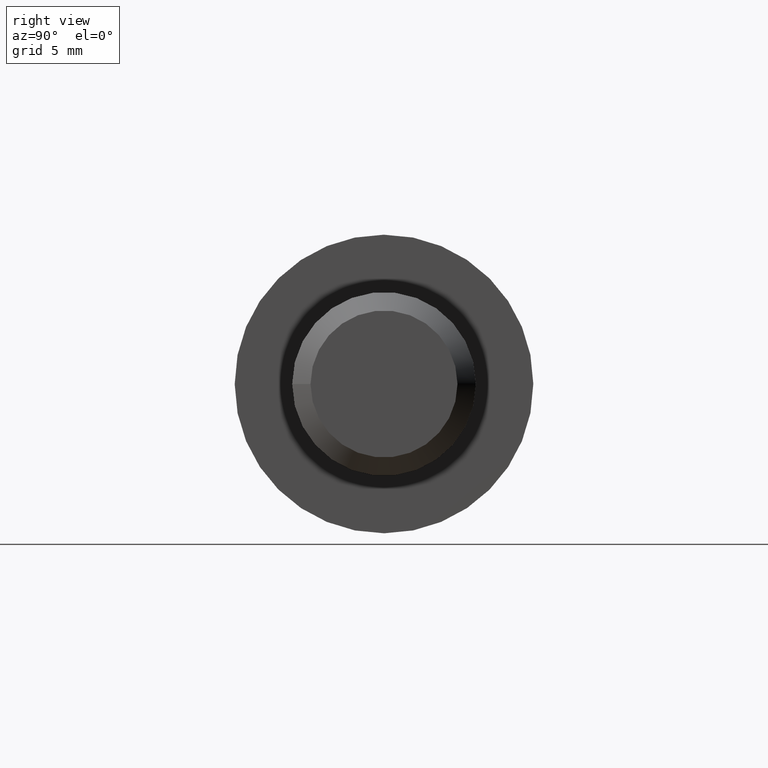
[diagram: clean part render]
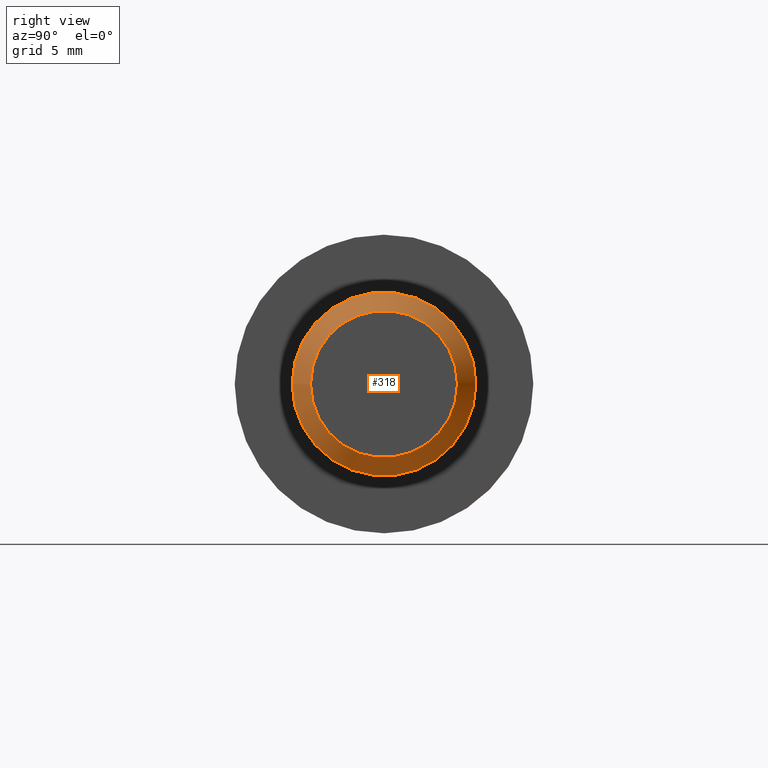
[diagram: same view with one face highlighted and labeled with its STEP entity id]
A machine part, right view. The second image highlights one B-rep face of the part: STEP entity #318.
In plain terms, the highlighted conical surface has half-angle 45 deg.
Its self-contained STEP definition (entity closure, byte-faithful):
#38=CIRCLE('',#371,4.);
#39=CIRCLE('',#372,4.);
#40=CIRCLE('',#374,3.2);
#41=CIRCLE('',#375,3.2);
#44=CONICAL_SURFACE('',#373,3.6,0.785398163397449);
#60=FACE_OUTER_BOUND('',#80,.T.);
#80=EDGE_LOOP('',(#285,#286,#287,#288,#289,#290));
#99=LINE('',#579,#117);
#117=VECTOR('',#468,3.6);
#154=VERTEX_POINT('',#569);
#155=VERTEX_POINT('',#570);
#156=VERTEX_POINT('',#575);
#157=VERTEX_POINT('',#576);
#197=EDGE_CURVE('',#154,#155,#38,.T.);
#198=EDGE_CURVE('',#155,#154,#39,.T.);
#200=EDGE_CURVE('',#156,#157,#40,.T.);
#201=EDGE_CURVE('',#157,#156,#41,.T.);
#202=EDGE_CURVE('',#157,#155,#99,.T.);
#285=ORIENTED_EDGE('',*,*,#200,.F.);
#286=ORIENTED_EDGE('',*,*,#201,.F.);
#287=ORIENTED_EDGE('',*,*,#202,.T.);
#288=ORIENTED_EDGE('',*,*,#198,.T.);
#289=ORIENTED_EDGE('',*,*,#197,.T.);
#290=ORIENTED_EDGE('',*,*,#202,.F.);
#318=ADVANCED_FACE('',(#60),#44,.T.);
#371=AXIS2_PLACEMENT_3D('',#571,#457,#458);
#372=AXIS2_PLACEMENT_3D('',#572,#459,#460);
#373=AXIS2_PLACEMENT_3D('',#574,#462,#463);
#374=AXIS2_PLACEMENT_3D('',#577,#464,#465);
#375=AXIS2_PLACEMENT_3D('',#578,#466,#467);
#457=DIRECTION('center_axis',(1.,2.29334027171402E-33,0.));
#458=DIRECTION('ref_axis',(0.,1.,0.));
#459=DIRECTION('center_axis',(1.,2.29334027171402E-33,0.));
#460=DIRECTION('ref_axis',(0.,1.,0.));
#462=DIRECTION('center_axis',(-1.,-2.29334027171402E-33,0.));
#463=DIRECTION('ref_axis',(0.,1.,0.));
#464=DIRECTION('center_axis',(1.,2.29334027171402E-33,0.));
#465=DIRECTION('ref_axis',(0.,1.,0.));
#466=DIRECTION('center_axis',(1.,2.29334027171402E-33,0.));
#467=DIRECTION('ref_axis',(0.,1.,0.));
#468=DIRECTION('',(-0.707106781186547,-0.707106781186548,-8.65956056235494E-17));
#569=CARTESIAN_POINT('',(25.2,4.,0.));
#570=CARTESIAN_POINT('',(25.2,-4.,-4.89858719658941E-16));
#571=CARTESIAN_POINT('Origin',(25.2,4.74721436244801E-32,0.));
#572=CARTESIAN_POINT('Origin',(25.2,4.74721436244801E-32,0.));
#574=CARTESIAN_POINT('Origin',(25.6,4.83894797331657E-32,0.));
#575=CARTESIAN_POINT('',(26.,3.2,0.));
#576=CARTESIAN_POINT('',(26.,-3.2,-3.91886975727153E-16));
#577=CARTESIAN_POINT('Origin',(26.,4.93068158418513E-32,0.));
#578=CARTESIAN_POINT('Origin',(26.,4.93068158418513E-32,0.));
#579=CARTESIAN_POINT('',(25.6,-3.6,-4.40872847693047E-16));